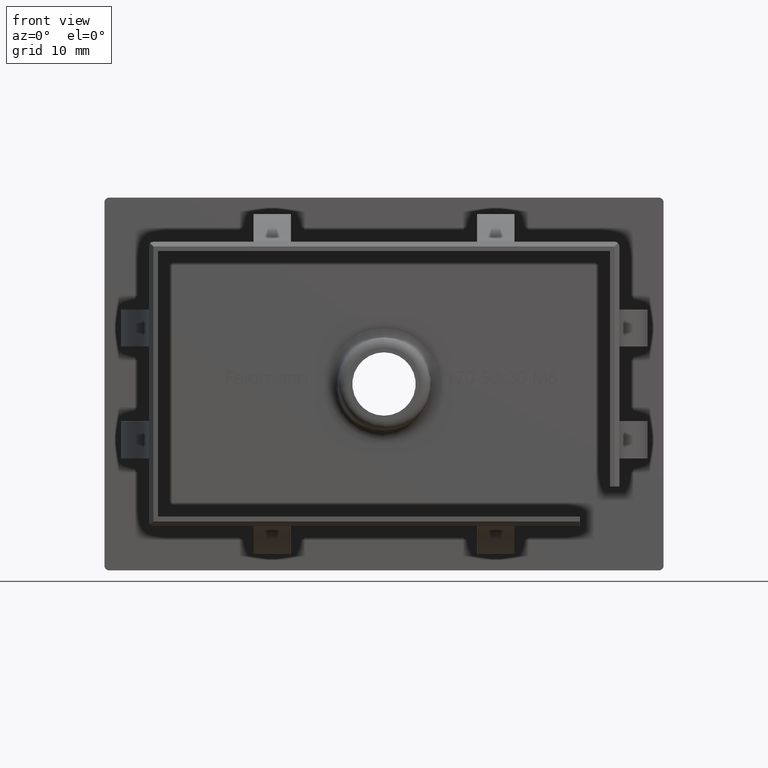
[diagram: clean part render]
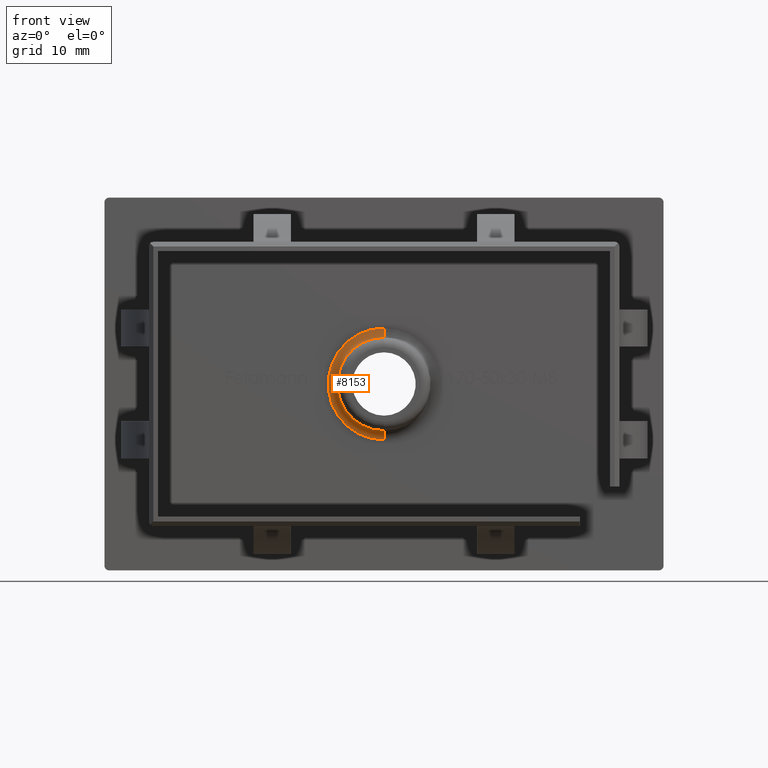
[diagram: same view with one face highlighted and labeled with its STEP entity id]
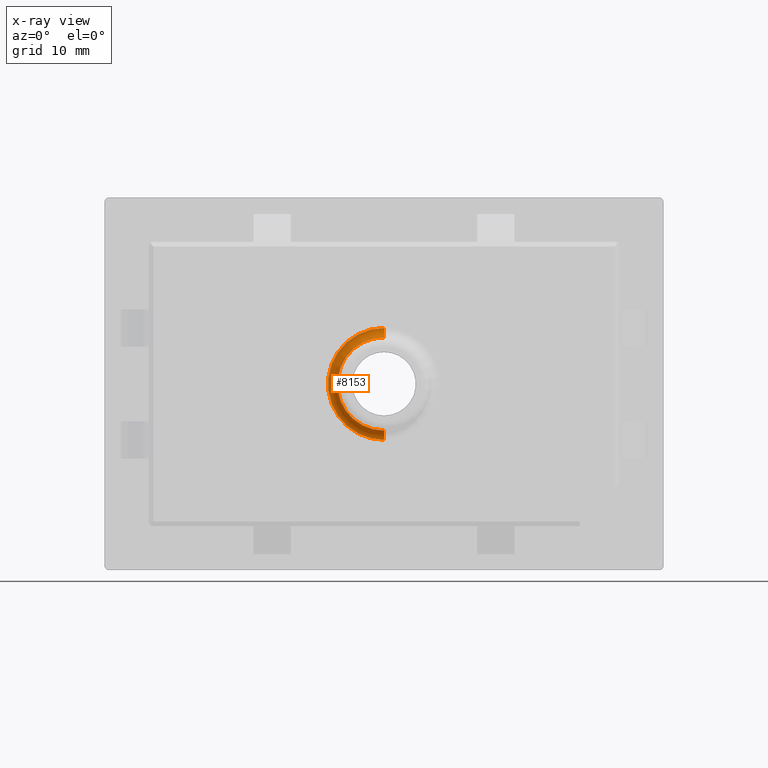
[diagram: x-ray of the same camera — body ghosted, the highlighted face saturated]
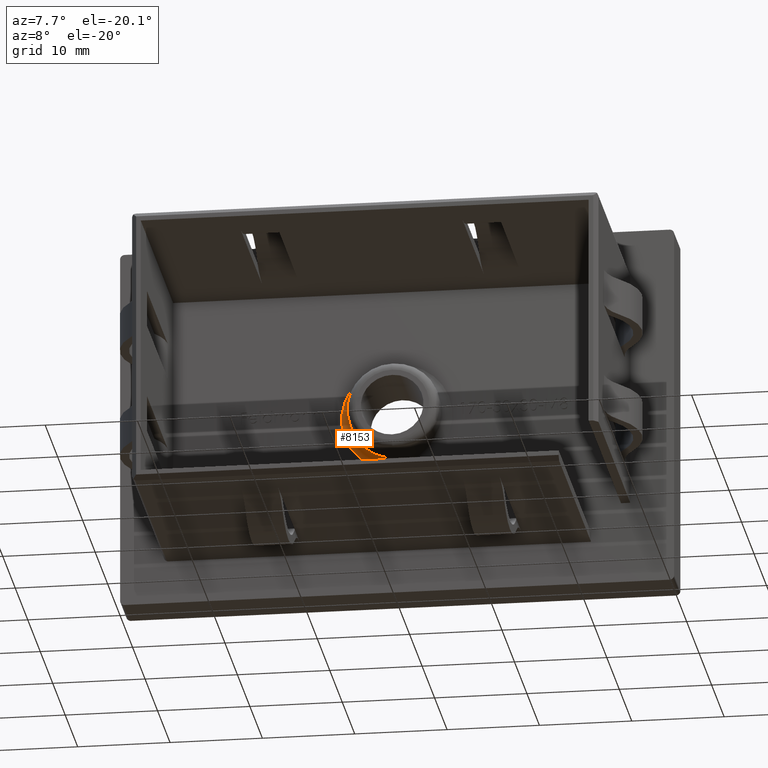
[diagram: same view with one face highlighted and labeled with its STEP entity id]
A machine part, front view. The second image highlights one B-rep face of the part: STEP entity #8153.
The next image is the same camera in x-ray: the body ghosted, the highlighted face saturated — about 0% of this face is hidden behind the body in this view.
A second angle (auxiliary view) of the same face is appended — the face is thin or edge-on in the first view.
In plain terms, the highlighted toroidal blend (fillet) surface has major radius 6 mm and minor (blend) radius 1 mm.
Its self-contained STEP definition (entity closure, byte-faithful):
#418 = CIRCLE ( 'NONE', #9349, 5.000000000000000000 ) ;
#779 = CARTESIAN_POINT ( 'NONE',  ( 0.0000000000000000000, -1.000000000000000000, 5.000000000000000000 ) ) ;
#1059 = FACE_OUTER_BOUND ( 'NONE', #14967, .T. ) ;
#1432 = CIRCLE ( 'NONE', #16045, 1.000000000000000000 ) ;
#2267 = DIRECTION ( 'NONE',  ( 1.224646799147353500E-016, 0.0000000000000000000, -1.000000000000000000 ) ) ;
#2326 = CARTESIAN_POINT ( 'NONE',  ( 7.347880794884119700E-016, -1.000000000000000000, -6.000000000000000000 ) ) ;
#2597 = CARTESIAN_POINT ( 'NONE',  ( 0.0000000000000000000, -1.000000000000000000, 0.0000000000000000000 ) ) ;
#2892 = CARTESIAN_POINT ( 'NONE',  ( 0.0000000000000000000, -1.000000000000000000, 6.000000000000000000 ) ) ;
#3066 = ORIENTED_EDGE ( 'NONE', *, *, #9538, .F. ) ;
#3364 = DIRECTION ( 'NONE',  ( 0.0000000000000000000, 0.0000000000000000000, 1.000000000000000000 ) ) ;
#4003 = DIRECTION ( 'NONE',  ( 0.0000000000000000000, 0.0000000000000000000, 1.000000000000000000 ) ) ;
#4029 = DIRECTION ( 'NONE',  ( 0.0000000000000000000, 1.000000000000000000, 0.0000000000000000000 ) ) ;
#4677 = CARTESIAN_POINT ( 'NONE',  ( 6.123233995736766300E-016, -1.000000000000000000, -5.000000000000000000 ) ) ;
#4972 = EDGE_CURVE ( 'NONE', #10183, #12708, #14712, .T. ) ;
#5019 = DIRECTION ( 'NONE',  ( 0.0000000000000000000, 0.0000000000000000000, 1.000000000000000000 ) ) ;
#5237 = AXIS2_PLACEMENT_3D ( 'NONE', #2326, #6872, #2267 ) ;
#6612 = CARTESIAN_POINT ( 'NONE',  ( 0.0000000000000000000, 0.0000000000000000000, 0.0000000000000000000 ) ) ;
#6872 = DIRECTION ( 'NONE',  ( 1.000000000000000000, -0.0000000000000000000, 1.224646799147353200E-016 ) ) ;
#6922 = ORIENTED_EDGE ( 'NONE', *, *, #4972, .F. ) ;
#7050 = DIRECTION ( 'NONE',  ( -0.0000000000000000000, -1.000000000000000000, -0.0000000000000000000 ) ) ;
#7245 = DIRECTION ( 'NONE',  ( -1.000000000000000000, 0.0000000000000000000, 0.0000000000000000000 ) ) ;
#7759 = CARTESIAN_POINT ( 'NONE',  ( 7.347880794884119700E-016, 0.0000000000000000000, -6.000000000000000000 ) ) ;
#8153 = ADVANCED_FACE ( 'NONE', ( #1059 ), #11429, .F. ) ;
#9349 = AXIS2_PLACEMENT_3D ( 'NONE', #14023, #7050, #4003 ) ;
#9538 = EDGE_CURVE ( 'NONE', #12708, #9659, #1432, .T. ) ;
#9659 = VERTEX_POINT ( 'NONE', #779 ) ;
#10183 = VERTEX_POINT ( 'NONE', #7759 ) ;
#11429 = TOROIDAL_SURFACE ( 'NONE', #16262, 6.000000000000000000, 1.000000000000000000 ) ;
#11506 = CIRCLE ( 'NONE', #5237, 1.000000000000000000 ) ;
#11959 = EDGE_CURVE ( 'NONE', #10183, #16705, #11506, .T. ) ;
#12708 = VERTEX_POINT ( 'NONE', #17230 ) ;
#12711 = DIRECTION ( 'NONE',  ( 0.0000000000000000000, 0.0000000000000000000, 1.000000000000000000 ) ) ;
#13383 = ORIENTED_EDGE ( 'NONE', *, *, #13384, .F. ) ;
#13384 = EDGE_CURVE ( 'NONE', #9659, #16705, #418, .T. ) ;
#14023 = CARTESIAN_POINT ( 'NONE',  ( 0.0000000000000000000, -1.000000000000000000, 0.0000000000000000000 ) ) ;
#14712 = CIRCLE ( 'NONE', #15291, 6.000000000000000000 ) ;
#14967 = EDGE_LOOP ( 'NONE', ( #6922, #15488, #13383, #3066 ) ) ;
#15291 = AXIS2_PLACEMENT_3D ( 'NONE', #6612, #18053, #5019 ) ;
#15488 = ORIENTED_EDGE ( 'NONE', *, *, #11959, .T. ) ;
#16045 = AXIS2_PLACEMENT_3D ( 'NONE', #2892, #7245, #3364 ) ;
#16262 = AXIS2_PLACEMENT_3D ( 'NONE', #2597, #4029, #12711 ) ;
#16705 = VERTEX_POINT ( 'NONE', #4677 ) ;
#17230 = CARTESIAN_POINT ( 'NONE',  ( 0.0000000000000000000, 0.0000000000000000000, 6.000000000000000000 ) ) ;
#18053 = DIRECTION ( 'NONE',  ( 0.0000000000000000000, 1.000000000000000000, 0.0000000000000000000 ) ) ;